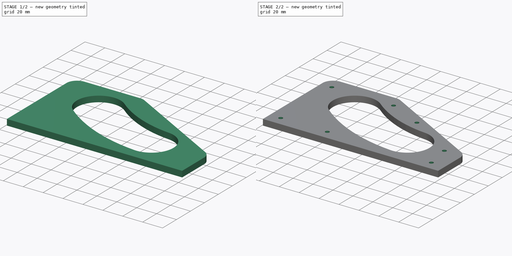
[diagram: build sequence overview — one tinted view per stage of 2, left to right]
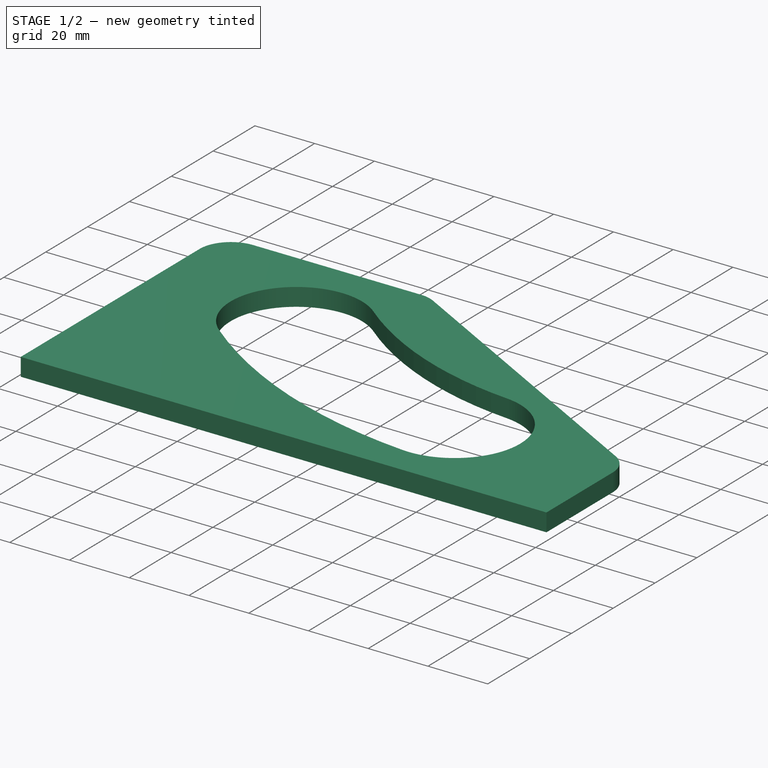
[diagram: stage 1 of 2 — iso view after this stage's code; geometry added in this stage tinted green]
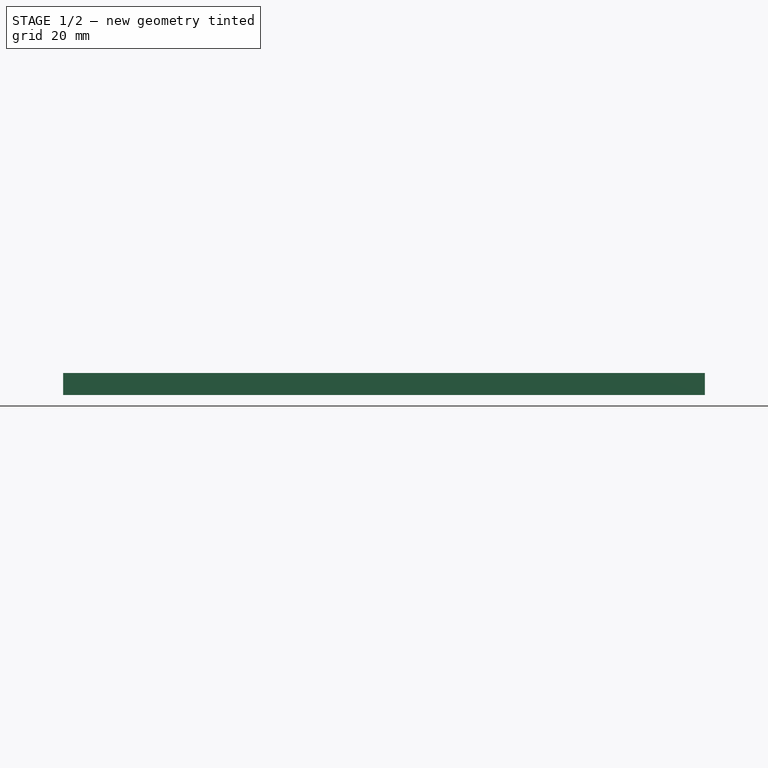
[diagram: stage 1 of 2 — front view after this stage's code; geometry added in this stage tinted green]
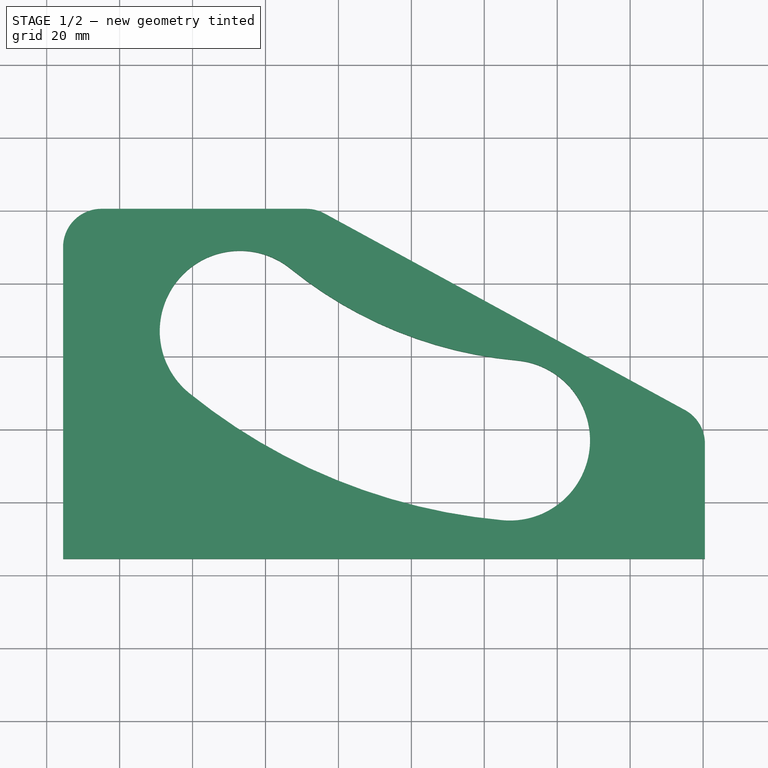
[diagram: stage 1 of 2 — top view after this stage's code; geometry added in this stage tinted green]
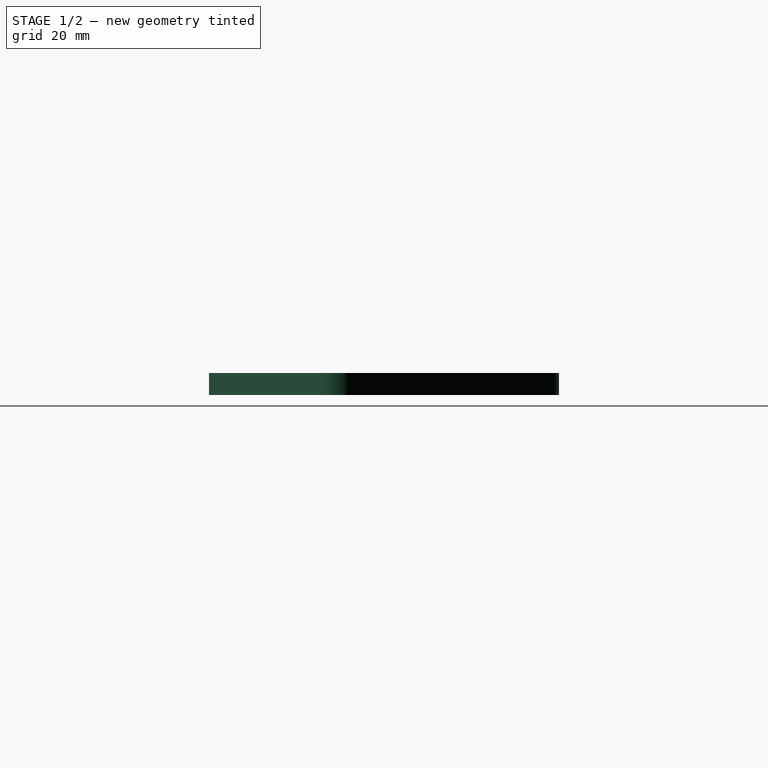
[diagram: stage 1 of 2 — right view after this stage's code; geometry added in this stage tinted green]
FCSTD DOCUMENT  (FreeCAD 0.20RUnknown)
Label: PushHandleTemplate
License: All rights reserved
LicenseURL: http://en.wikipedia.org/wiki/All_rights_reserved
objects: Sketcher::SketchObject×2, PartDesign::Pad×2, PartDesign::Body×2, Spreadsheet::Sheet×1, PartDesign::SubShapeBinder×1, PartDesign::Hole×1
note: 11 computed .brp shape members not serialized (recipe doc carries the construction recipe); baked Part::Feature solids carry a one-line shape summary decoded from their .brp

FEATURE [Sketcher::SketchObject] Sketch
  FullyConstrained = true
  MapMode = 5
  Support = -> [XY_Plane]
  expr: Constraints[33] = <<data>>.corner
  sketch-geometry (15):
    g0: LineSegment StartX=0 StartY=0 StartZ=0 EndX=0 EndY=90 EndZ=0
    g1: LineSegment StartX=15 StartY=105 StartZ=0 EndX=71.1751 EndY=105 EndZ=0
    g2: LineSegment StartX=78.3579 StartY=103.168 StartZ=0 EndX=177.183 EndY=49.2639 EndZ=0
    g3: LineSegment StartX=185 StartY=36.0955 StartZ=0 EndX=185 EndY=0 EndZ=0
    g4: LineSegment StartX=185 StartY=0 StartZ=0 EndX=0 EndY=0 EndZ=0
    g5: ArcOfCircle CenterX=53 CenterY=67 CenterZ=0 NormalX=0 NormalY=0 NormalZ=1 AngleXU=0 Radius=17.5 StartAngle=0.891033 EndAngle=4.03263
    g6: ArcOfCircle CenterX=127 CenterY=37 CenterZ=0 NormalX=0 NormalY=0 NormalZ=1 AngleXU=0 Radius=17.5 StartAngle=4.62184 EndAngle=7.76343
    g7: ArcOfCircle CenterX=139.434 CenterY=173.937 CenterZ=0 NormalX=0 NormalY=0 NormalZ=1 AngleXU=0 Radius=120 StartAngle=4.03263 EndAngle=4.62184
    g8: ArcOfCircle CenterX=139.434 CenterY=173.937 CenterZ=0 NormalX=0 NormalY=0 NormalZ=1 AngleXU=0 Radius=155 StartAngle=4.03263 EndAngle=4.62184
    g9: ArcOfCircle CenterX=15 CenterY=90 CenterZ=0 NormalX=0 NormalY=0 NormalZ=1 AngleXU=0 Radius=15 StartAngle=1.5708 EndAngle=3.14159
    g10: GeomPoint X=0 Y=105 Z=0
    g11: ArcOfCircle CenterX=71.1751 CenterY=90 CenterZ=0 NormalX=0 NormalY=0 NormalZ=1 AngleXU=0 Radius=15 StartAngle=1.07145 EndAngle=1.5708
    g12: GeomPoint X=75 Y=105 Z=0
    g13: ArcOfCircle CenterX=170 CenterY=36.0955 CenterZ=0 NormalX=0 NormalY=0 NormalZ=1 AngleXU=0 Radius=15 StartAngle=0 EndAngle=1.07145
    g14: GeomPoint X=185 Y=45 Z=0
  constraints (38):
    c: Coincident(g-1,g0)
    c: PointOnObject(g10,g-2)
    c: Horizontal(g1)
    c: PointOnObject(g3,g-1)
    c: Vertical(g3)
    c: Coincident(g3,g4)
    c: Coincident(g4,g0)
    c: Coincident(g8,g7)
    c: DistanceY(g0,g10) = 105
    c: DistanceY(g3,g14) = 45
    c: DistanceX(g4,g4) = 185
    c: DistanceX(g10,g12) = 75
    c: DistanceY(g5,g10) = 38
    c: DistanceX(g10,g5) = 53
    c: Diameter(g5) = 35
    c: DistanceY(g3,g6) = 37
    c: DistanceX(g6,g3) = 58
    c: Diameter(g6) = 35
    c: Radius(g7) = 120
    c: PointOnObject(g10,g1)
    c: PointOnObject(g10,g0)
    c: Tangent(g1,g9) = 1.5708
    c: Tangent(g0,g9) = 1.5708
    c: PointOnObject(g12,g1)
    c: PointOnObject(g12,g2)
    c: Tangent(g1,g11) = 1.5708
    c: Tangent(g2,g11) = 1.5708
    c: PointOnObject(g14,g2)
    c: PointOnObject(g14,g3)
    c: Tangent(g2,g13) = 1.5708
    c: Tangent(g3,g13) = 1.5708
    c: Equal(g13,g11)
    c: Equal(g11,g9)
    c: Radius(g9) = 15
    c: Tangent(g5,g8) = -1.5708
    c: Tangent(g5,g7) = 1.5708
    c: Tangent(g6,g7) = 1.5708
    c: Tangent(g6,g8) = -1.5708
FEATURE [Spreadsheet::Sheet] Spreadsheet  label="data"
  cells = A1=corner radius; B1(corner)==15mm; A2=cutting bit diameter; B2(bit)==8mm; A3=template guide diameter; B3(guide)==17mm; A4=height; B4(height)==6mm
FEATURE [PartDesign::Pad] Pad
  Direction = (0,0,1)
  Length = 24
  Length2 = 10
  Profile = -> Sketch
  ReferenceAxis = -> Sketch [N_Axis]
  Type = 0
FEATURE [PartDesign::Body] Body  label="HandleBody"
  Group = -> [Sketch,Pad]
  Origin = -> Origin
  Tip = -> Pad
FEATURE [PartDesign::SubShapeBinder] Binder001  label="TemplateSketch"
  BindCopyOnChange = 0
  BindMode = 0
  ClaimChildren = false
  Context = -> Body001 [Binder001.]
  Fuse = false
  MakeFace = true
  Offset = -4.5
  OffsetFill = false
  OffsetIntersection = false
  OffsetJoinType = 0
  OffsetOpenResult = false
  PartialLoad = false
  Relative = true
  Support = -> [Body[Pad.Sketch.]]
  _Version = 2
  expr: Offset = -(<<data>>.guide - <<data>>.bit) / 2mm
FEATURE [PartDesign::Pad] Pad001
  Direction = (0,0,1)
  Length = 6
  Length2 = 10
  Profile = -> Binder001
  Type = 0
  expr: Length = <<data>>.height
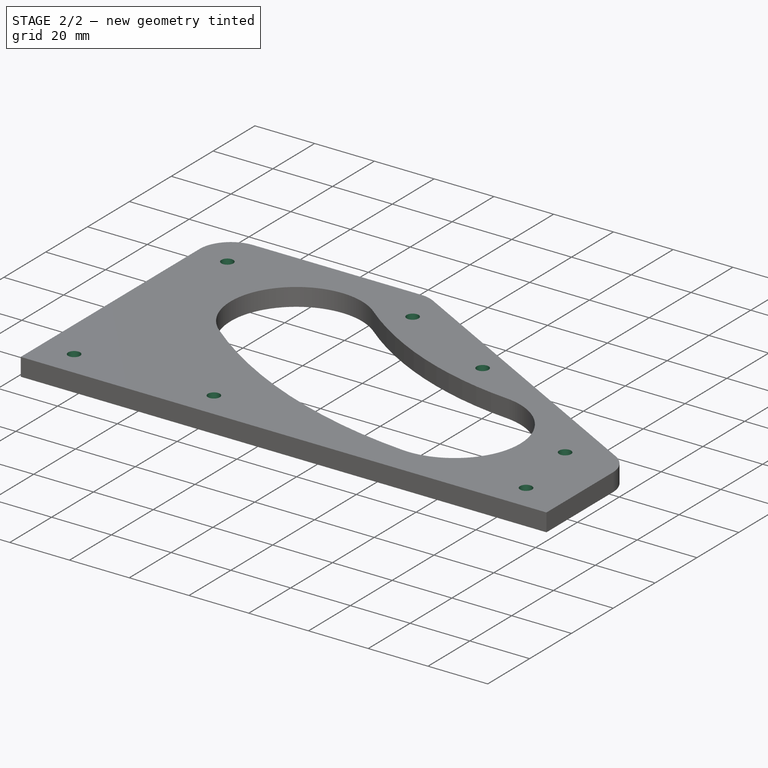
[diagram: stage 2 of 2 — iso view after this stage's code; geometry added in this stage tinted green]
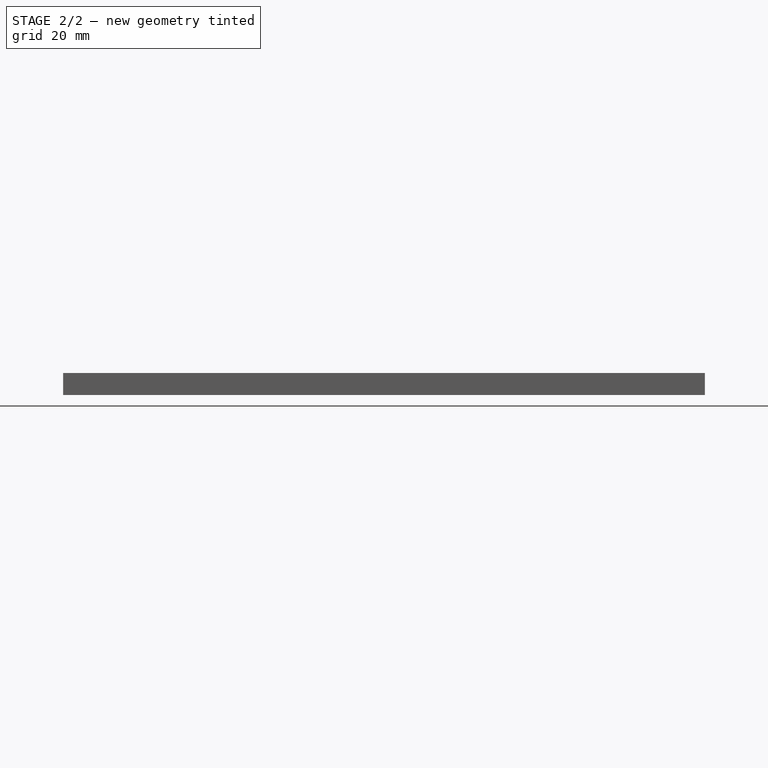
[diagram: stage 2 of 2 — front view after this stage's code; geometry added in this stage tinted green]
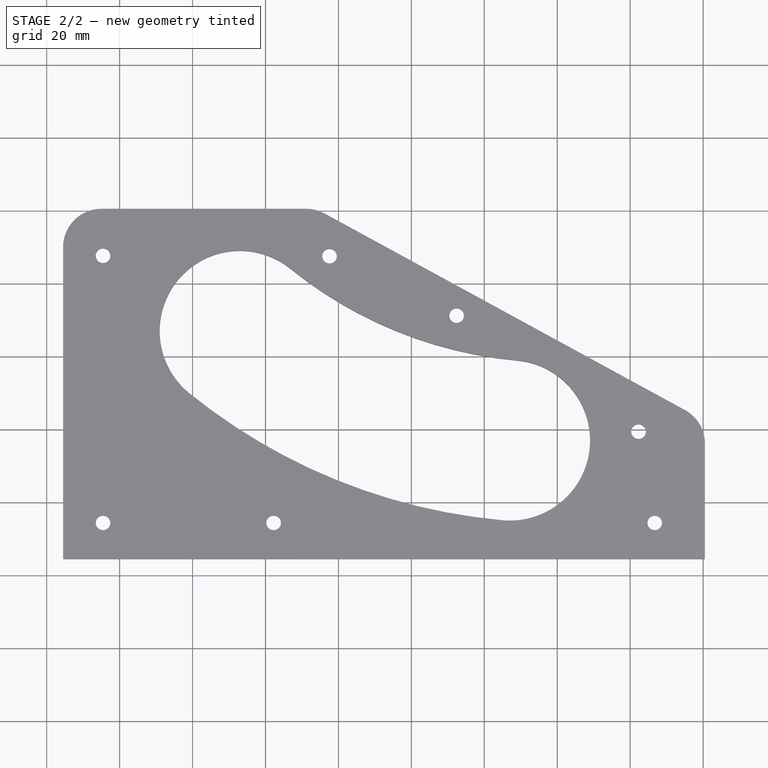
[diagram: stage 2 of 2 — top view after this stage's code; geometry added in this stage tinted green]
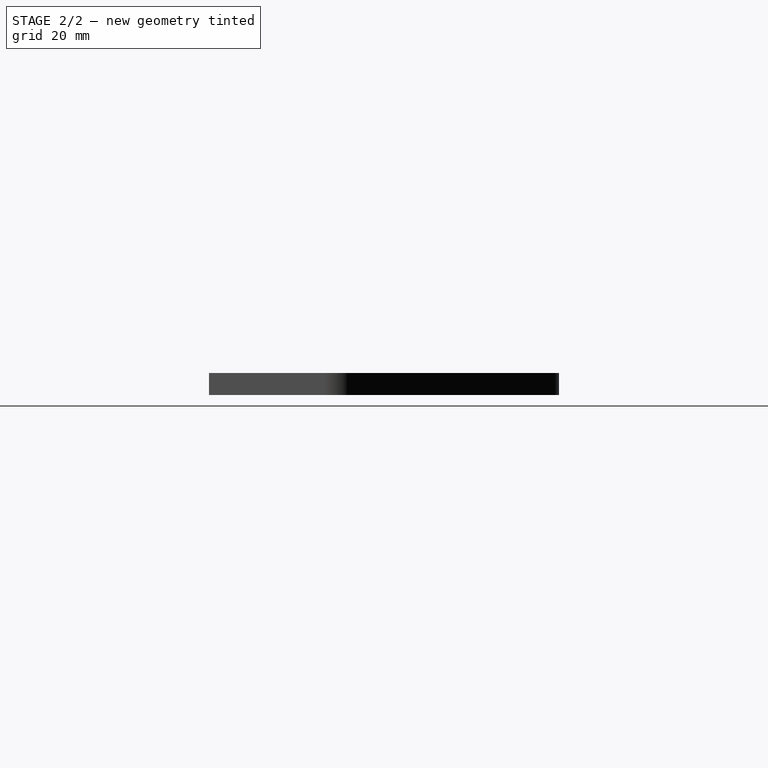
[diagram: stage 2 of 2 — right view after this stage's code; geometry added in this stage tinted green]
FEATURE [Sketcher::SketchObject] Sketch001
  FullyConstrained = false
  MapMode = 5
  Support = -> [XY_Plane001]
  sketch-geometry (9):
    g0: Circle CenterX=15.4571 CenterY=14.3845 CenterZ=0 NormalX=0 NormalY=0 NormalZ=1 AngleXU=0 Radius=2.5
    g1: Circle CenterX=166.742 CenterY=14.3845 CenterZ=0 NormalX=0 NormalY=0 NormalZ=1 AngleXU=0 Radius=2.5
    g2: Circle CenterX=112.413 CenterY=71.2157 CenterZ=0 NormalX=0 NormalY=0 NormalZ=1 AngleXU=0 Radius=2.5
    g3: Circle CenterX=15.4571 CenterY=87.6438 CenterZ=0 NormalX=0 NormalY=0 NormalZ=1 AngleXU=0 Radius=2.5
    g4: LineSegment StartX=15.4571 StartY=14.3845 StartZ=0 EndX=166.742 EndY=14.3845 EndZ=0
    g5: LineSegment StartX=15.4571 StartY=14.3845 StartZ=0 EndX=15.4571 EndY=87.6438 EndZ=0
    g6: Circle CenterX=62.2442 CenterY=14.3845 CenterZ=0 NormalX=0 NormalY=0 NormalZ=1 AngleXU=0 Radius=2.5
    g7: Circle CenterX=162.304 CenterY=39.4011 CenterZ=0 NormalX=0 NormalY=0 NormalZ=1 AngleXU=0 Radius=2.5
    g8: Circle CenterX=77.572 CenterY=87.5159 CenterZ=0 NormalX=0 NormalY=0 NormalZ=1 AngleXU=0 Radius=2.5
  constraints (14):
    c: Equal(g0,g1)
    c: Equal(g2,g3)
    c: Equal(g0,g3)
    c: Coincident(g4,g0)
    c: Coincident(g4,g1)
    c: Horizontal(g4)
    c: Vertical(g5)
    c: Coincident(g3,g5)
    c: Coincident(g5,g0)
    c: Diameter(g3) = 5
    c: PointOnObject(g6,g4)
    c: Equal(g0,g6)
    c: Equal(g7,g2)
    c: Equal(g2,g8)
FEATURE [PartDesign::Hole] Hole
  BaseFeature = -> Pad001
  CustomThreadClearance = 0
  Depth = 25
  DepthType = 0
  Diameter = 4
  DrillForDepth = false
  DrillPoint = 1
  DrillPointAngle = 118
  HoleCutCountersinkAngle = 90
  HoleCutCustomValues = false
  HoleCutDepth = 0
  HoleCutDiameter = 9
  HoleCutType = 2
  ModelThread = false
  Profile = -> Sketch001
  Reversed = true
  Tapered = false
  TaperedAngle = 90
  ThreadClass = 0
  ThreadDepth = 25
  ThreadDepthType = 0
  ThreadDirection = 0
  ThreadFit = 0
  ThreadSize = 0
  ThreadType = 0
  Threaded = false
  UseCustomThreadClearance = false
FEATURE [PartDesign::Body] Body001  label="HandleTemplate"
  Group = -> [Binder001,Pad001,Sketch001,Hole]
  Origin = -> Origin001
  Tip = -> Hole
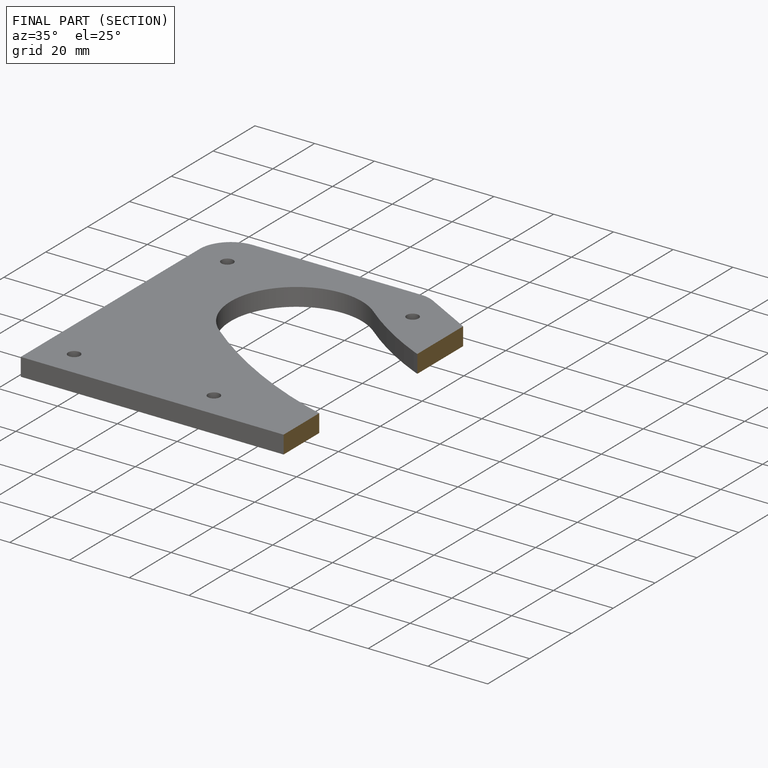
[diagram: finished part — half-section view (interior)]
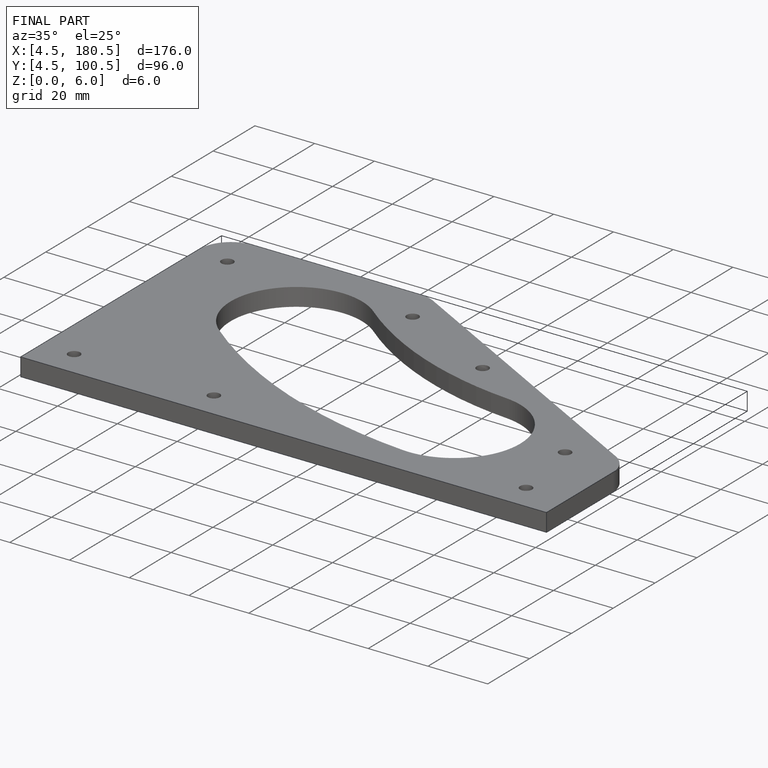
[diagram: finished part — iso view with bounding-box wireframe]
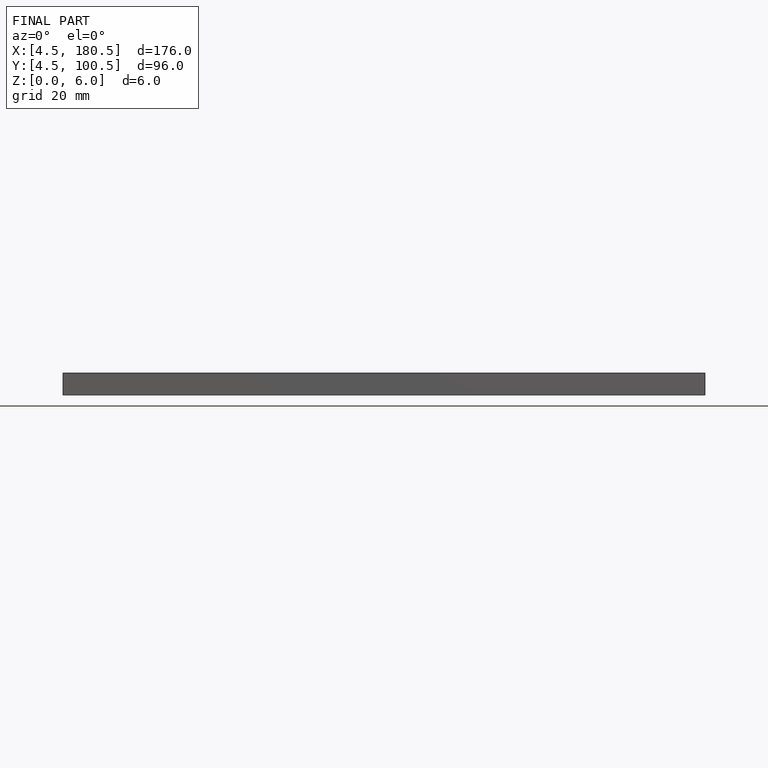
[diagram: finished part — front view with bounding-box wireframe]
